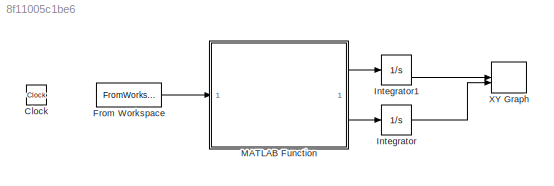
MODEL slx_8f11005c1be6
KIND model
CONFIG AbsTol = auto
CONFIG EnableMultiTasking = off
CONFIG FixedStep = auto
CONFIG MaxStep = auto
CONFIG MinStep = auto
CONFIG RelTol = 1e-3
CONFIG SampleTimeConstraint = Unconstrained
CONFIG SolverName = VariableStepAuto
CONFIG StartTime = 0.0
CONFIG StopTime = 10.0
BLOCK [Clock] Clock
BLOCK [FromWorkspace] From Workspace
  VariableName = gesture_code
BLOCK [Integrator] Integrator
BLOCK [Integrator] Integrator1
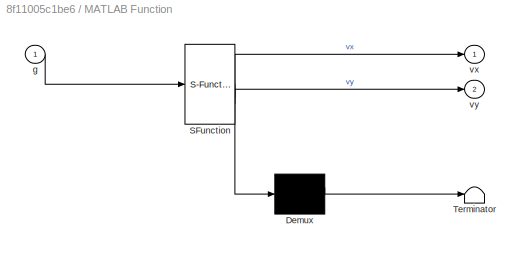
BLOCK [SubSystem] MATLAB Function
  ErrorFcn = Stateflow.Translate.translate
  LibrarySourceBlock = simulink/User-Defined\nFunctions/MATLAB Function
  PermitHierarchicalResolution = ExplicitOnly
  SFBlockType = MATLAB Function
  TreatAsAtomicUnit = on
BLOCK [Demux] MATLAB Function/ Demux 
  Outputs = 1
BLOCK [S-Function] MATLAB Function/ SFunction 
  EnableBusSupport = on
  FunctionName = sf_sfun
  PortCounts = [1 3]
  SFcnIsStateOwnerBlock = off
  SFunctionDeploymentMode = off
  Tag = Stateflow S-Function 2
BLOCK [Terminator] MATLAB Function/ Terminator 
BLOCK [Inport] MATLAB Function/g
BLOCK [Outport] MATLAB Function/vx
BLOCK [Outport] MATLAB Function/vy
  Port = 2
BLOCK [Record] XY Graph
  CompatibilityTag = XY
  FileSettingsInternal = {"entries":[{"content":{"excelSettings":{"content":{},"type":"Streamout.ExcelSettings"}},"type":"Streamout.FileSettingStorage","uuid":"c3bd502a-33b7-408e-8752-6e9ddd59f2c3"}],"packageUris":["http://schema.mathworks.com/mf0/streamout_blocks/R2020a"],"version":"1.0"}
  Layout = [1 1]
  SignalsInternal = {"entries":[{"content":{"signals":[{"content":{"blockPath":["gesture_sim/XY Graph"],"channel":[],"dimensions":[1],"domain":"gesture_sim/XY Graph","lineColor":"#a2142f","plots":[],"port":1,"sid":[""],"signalID":529,"signalName":"Integrator1"},"type":"RecordBlkView.Signal","uuid":"5e397726-2fb4-4190-97af-135726741134"},{"content":{"blockPath":["gesture_sim/XY Graph"],"channel":[],"dimensions":[1],"d...<+378ch>
  VisualizationBindings = {"xyplotplugin":{"info":[{"series":[],"subplotID":1}]}}
LINE From Workspace:1 -> MATLAB Function:1
LINE Integrator1:1 -> XY Graph:1
LINE Integrator:1 -> XY Graph:2
LINE MATLAB Function:1 -> Integrator1:1
LINE MATLAB Function:2 -> Integrator:1
CHART MATLAB Function states=1 transitions=1
  STATE_LABEL 'eML_blk_kernel()'
  STATE_LABEL 'SCRIPT:\nfunction [vx, vy] = gestureControl(g)\n% g = gesture code\nvx = 0; vy = 0;\nswitch g\n    case 1  % forward\n        vy = 1;\n    case 2  % backward\n        vy = -1;\n    case 3  % left\n        vx = -1;\n    case 4  % right\n        vx = 1;\n    case 5  % stop\n        vx = 0;\n        vy = 0;\n\nclassdef app1 < matlab.apps.AppBase\n\n    % Properties that correspond to app components\n    properties (Acce...<+3608ch>'
CHART  states=0 transitions=0
